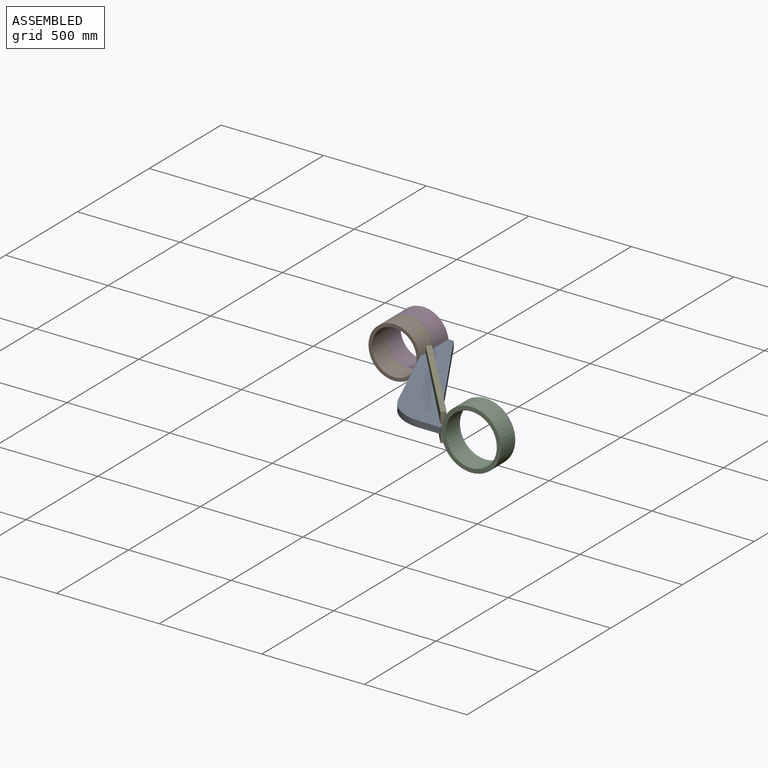
[diagram: assembled view]
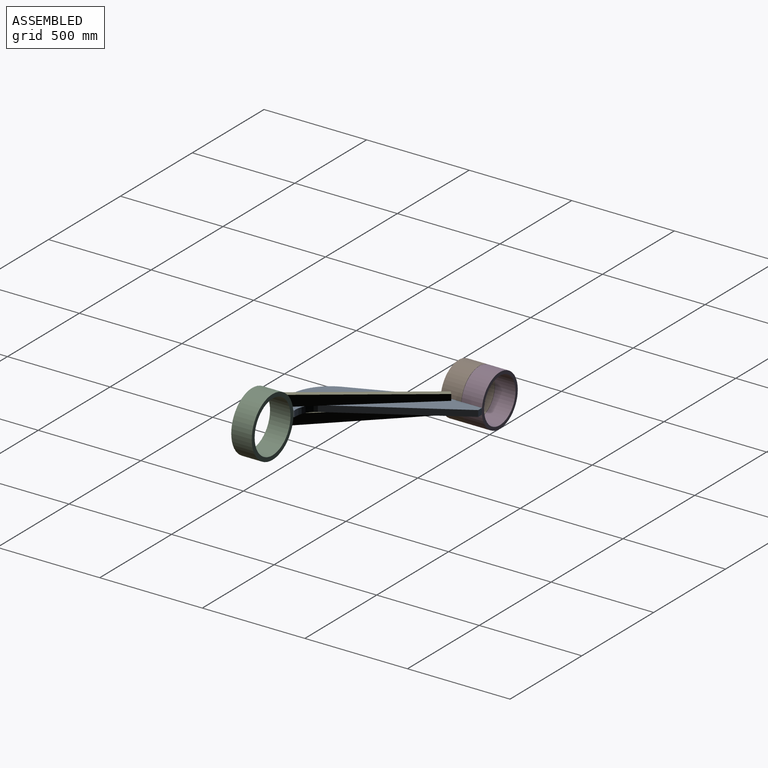
[diagram: assembled view, second angle]
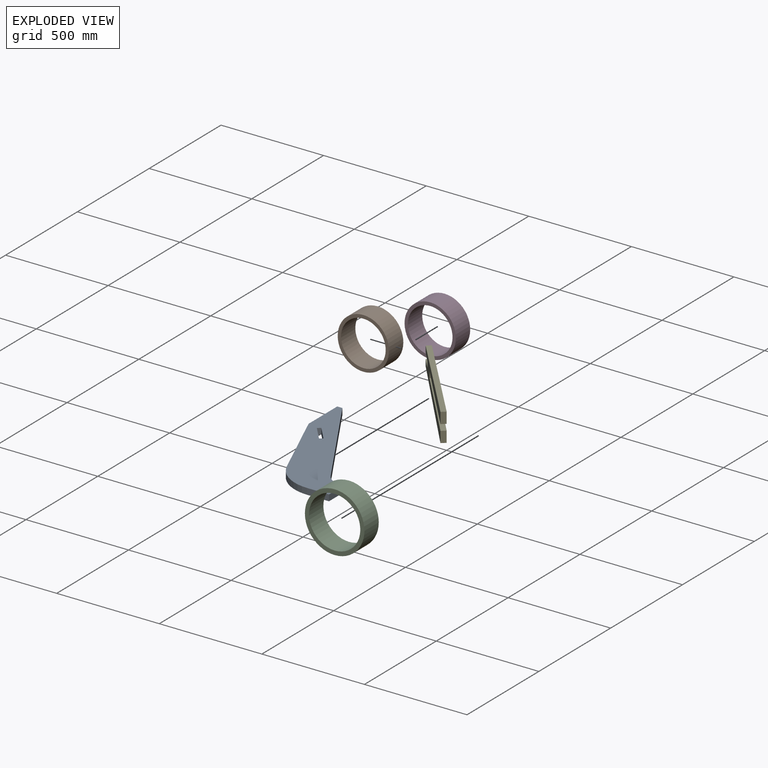
[diagram: exploded view]
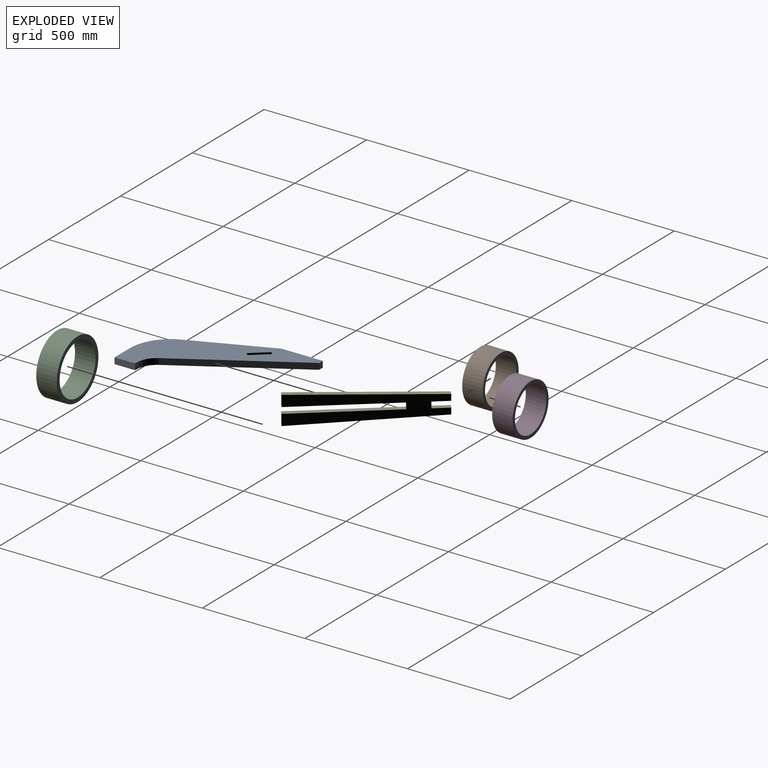
[diagram: exploded view, second angle]
ASSEMBLY  parts=5 mates=3
PART A: 15 faces, bbox 450x700x30 mm
  f0: plane 76.6x64.28mm, normal (0.77,0.64,0), area 3000mm2, adj f1,f12,f13,f14
  f1: plane 30x13.79mm, normal (0.64,-0.77,0), area 540mm2, adj f0,f2,f13,f14
  f2: plane 76.6x64.28mm, normal (-0.77,-0.64,0), area 3000mm2, adj f1,f12,f13,f14
  f3: plane 106.63x30mm, normal (0,-1,0), area 3198.9mm2, adj f4,f11,f13,f14
  f4: plane 100x30mm, normal (1,0,0), area 3000mm2, adj f3,f5,f13,f14
  f5: plane 30x10mm, normal (0,1,0), area 300mm2, adj f4,f6,f13,f14
  f6: cylinder r=100mm len=85.86mm, axis (0,0,-1), area 3097.6mm2, adj f5,f7,f13,f14
  f7: plane 551.26x329.14mm, normal (0.86,0.51,0), area 19261.4mm2, adj f6,f8,f13,f14
  f8: plane 30x25mm, normal (0,1,0), area 750mm2, adj f7,f9,f13,f14
  f9: plane 200x30mm, normal (-1,0,0), area 6000mm2, adj f8,f10,f13,f14
  f10: plane 377.63x159.05mm, normal (-0.92,-0.39,0), area 12292.8mm2, adj f9,f11,f13,f14
  f11: cylinder r=200mm len=184.32mm, axis (0,0,-1), area 7033mm2, adj f3,f10,f13,f14
  f12: plane 30x13.79mm, normal (-0.64,0.77,0), area 540mm2, adj f0,f2,f13,f14
  f13: plane 700x450mm, normal (0,0,1), area 110424.8mm2, adj f0,f1,f2,f3,f4,f5,f6,f7
  f14: plane 700x450mm, normal (0,0,-1), area 110424.8mm2, adj f0,f1,f2,f3,f4,f5,f6,f7
PART B: 4 faces, bbox 250x100x250 mm
  f0: cylinder r=109mm len=218mm, axis (0,1,0), area 68486.7mm2, adj f2,f3
  f1: cylinder r=125mm len=250mm, axis (0,1,0), area 78539.8mm2, adj f2,f3
  f2: plane 250x250mm, normal (0,-1,0), area 11762.1mm2, adj f0,f1
  f3: plane 250x250mm, normal (0,1,0), area 11762.1mm2, adj f0,f1
PART C: 4 faces, bbox 290x100x290 mm
  f0: cylinder r=125mm len=250mm, axis (0,1,0), area 78539.8mm2, adj f2,f3
  f1: cylinder r=145mm len=290mm, axis (0,1,0), area 91106.2mm2, adj f2,f3
  f2: plane 290x290mm, normal (0,-1,0), area 16964.6mm2, adj f0,f1
  f3: plane 290x290mm, normal (0,1,0), area 16964.6mm2, adj f0,f1
PART D: same geometry as B
PART E: 14 faces, bbox 25x680x137.5 mm
  f0: plane 30x25mm, normal (0,-1,0), area 750mm2, adj f1,f11,f12,f13
  f1: plane 500x25mm, normal (0,0,1), area 12500mm2, adj f0,f2,f12,f13
  f2: plane 53.75x25mm, normal (0,-1,0), area 1343.7mm2, adj f1,f3,f12,f13
  f3: plane 680x25mm, normal (0,0.03,-1), area 17010.4mm2, adj f2,f4,f12,f13
  f4: plane 30x25mm, normal (0,1,0), area 750mm2, adj f3,f5,f12,f13
  f5: plane 80x25mm, normal (0,0,1), area 2000mm2, adj f4,f6,f12,f13
  f6: plane 30x25mm, normal (0,1,0), area 750mm2, adj f5,f7,f12,f13
  f7: plane 80x25mm, normal (0,0,-1), area 2000mm2, adj f6,f8,f12,f13
  f8: plane 30x25mm, normal (0,1,0), area 750mm2, adj f7,f9,f12,f13
  f9: plane 680x25mm, normal (0,0.03,1), area 17010.4mm2, adj f8,f10,f12,f13
  f10: plane 53.75x25mm, normal (0,-1,0), area 1343.7mm2, adj f9,f11,f12,f13
  f11: plane 500x25mm, normal (0,0,-1), area 12500mm2, adj f0,f10,f12,f13
  f12: plane 680x137.49mm, normal (1,0,0), area 59947.4mm2, adj f0,f1,f2,f3,f4,f5,f6,f7
  f13: plane 680x137.49mm, normal (-1,0,0), area 59947.4mm2, adj f0,f1,f2,f3,f4,f5,f6,f7
PLACE A t=(-25,50,0)mm
PLACE B t=(0,-101,0)mm
PLACE C t=(725,-600,0)mm
PLACE D at identity fixed
PLACE E rot(axis=(0,0,1),40deg) t=(246.17,-234.41,0)mm
MATE fastened A.f12 <-> E.f0  axis (-0.64,0.77,0) through (246.17,-234.41,0)mm
MATE fastened A.f5 <-> C.f3  axis (0,1,0) through (575,-550,0)mm
MATE fastened A.f8 <-> D.f3  axis (0,1,0) through (125,50,0)mm
